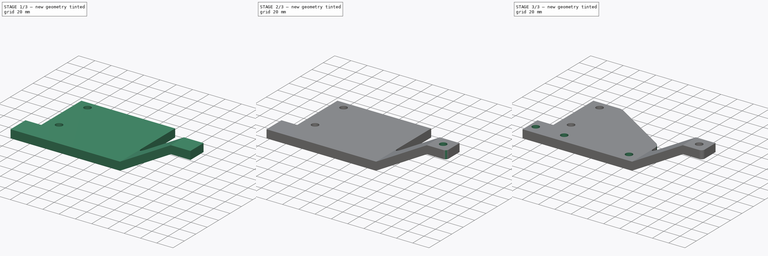
[diagram: build sequence overview — one tinted view per stage of 3, left to right]
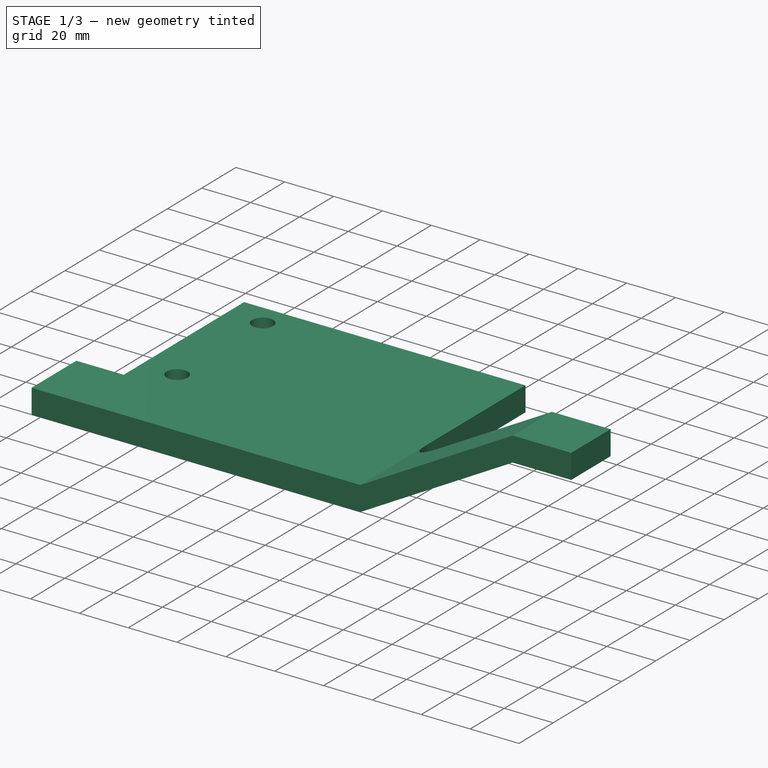
[diagram: stage 1 of 3 — iso view after this stage's code; geometry added in this stage tinted green]
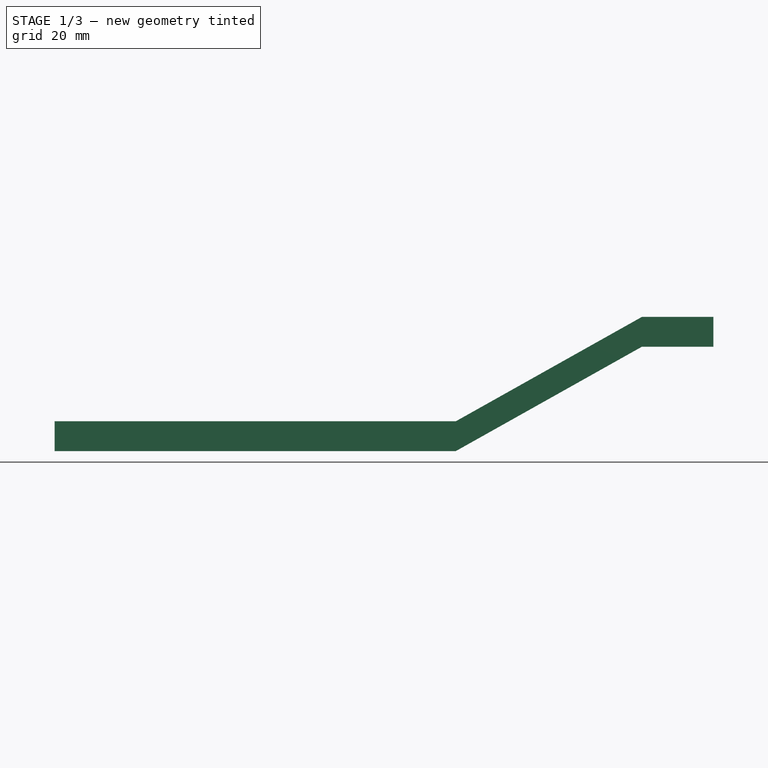
[diagram: stage 1 of 3 — front view after this stage's code; geometry added in this stage tinted green]
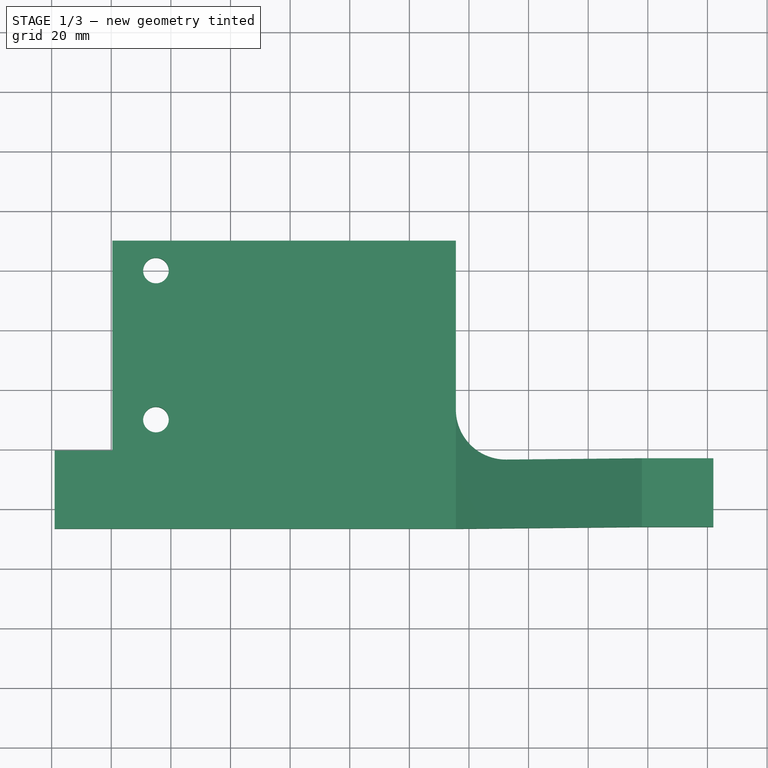
[diagram: stage 1 of 3 — top view after this stage's code; geometry added in this stage tinted green]
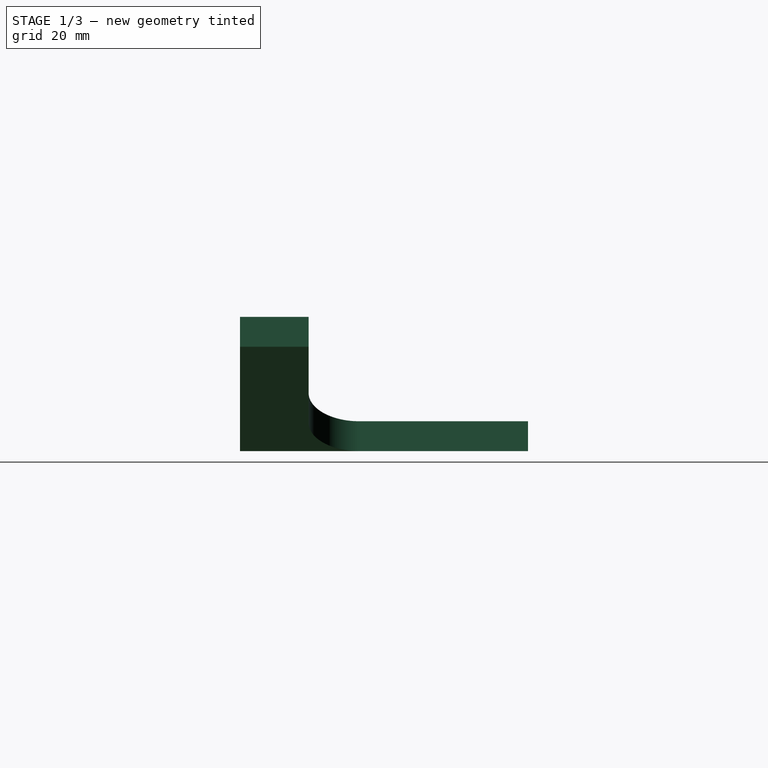
[diagram: stage 1 of 3 — right view after this stage's code; geometry added in this stage tinted green]
FCSTD DOCUMENT  (FreeCAD 1.0R39109 (Git))
Label: sway_motor_mount_front_plate
License: All rights reserved
LicenseURL: https://en.wikipedia.org/wiki/All_rights_reserved
objects: Sketcher::SketchObject×4, PartDesign::Fillet×3, PartDesign::Pad×2, PartDesign::Pocket×2, PartDesign::Chamfer×1, PartDesign::Body×1
note: 33 computed .brp shape members not serialized (recipe doc carries the construction recipe); baked Part::Feature solids carry a one-line shape summary decoded from their .brp

FEATURE [Sketcher::SketchObject] Sketch
  ArcFitTolerance = 1e-06
  AttachmentSupport = -> [XY_Plane]
  FullyConstrained = false
  MakeInternals = false
  MapMode = 5
  sketch-geometry (17):
    g0: LineSegment [constr] StartX=0 StartY=0 StartZ=0 EndX=178 EndY=0 EndZ=0
    g1: LineSegment [constr] StartX=178 StartY=0 StartZ=0 EndX=178 EndY=70 EndZ=0
    g2: LineSegment [constr] StartX=178 StartY=70 StartZ=0 EndX=0 EndY=70 EndZ=0
    g3: LineSegment [constr] StartX=0 StartY=70 StartZ=0 EndX=0 EndY=0 EndZ=0
    g4: Circle CenterX=15 CenterY=60 CenterZ=0 NormalX=0 NormalY=0 NormalZ=1 AngleXU=0 Radius=4.3
    g5: Circle CenterX=15 CenterY=10 CenterZ=0 NormalX=0 NormalY=0 NormalZ=1 AngleXU=0 Radius=4.3
    g6: LineSegment StartX=0.4 StartY=70 StartZ=0 EndX=0.4 EndY=-0.4 EndZ=0
    g7: LineSegment [constr] StartX=-19 StartY=-27 StartZ=0 EndX=-19 EndY=-107 EndZ=0
    g8: LineSegment [constr] StartX=-19 StartY=-107 StartZ=0 EndX=95.6 EndY=-107 EndZ=0
    g9: LineSegment [constr] StartX=95.6 StartY=-107 StartZ=0 EndX=95.6 EndY=-27 EndZ=0
    g10: LineSegment [constr] StartX=95.6 StartY=-27 StartZ=0 EndX=-19 EndY=-27 EndZ=0
    g11: LineSegment StartX=0.4 StartY=-0.4 StartZ=0 EndX=-19 EndY=-0.4 EndZ=0
    g12: LineSegment StartX=-19 StartY=-0.4 StartZ=0 EndX=-19 EndY=-26.6 EndZ=0
    g13: LineSegment StartX=-19 StartY=-26.6 StartZ=0 EndX=115.6 EndY=-26.6 EndZ=0
    g14: LineSegment StartX=115.6 StartY=-26.6 StartZ=0 EndX=115.6 EndY=0 EndZ=0
    g15: LineSegment StartX=115.6 StartY=0 StartZ=0 EndX=115.6 EndY=70 EndZ=0
    g16: LineSegment StartX=115.6 StartY=70 StartZ=0 EndX=0.4 EndY=70 EndZ=0
  constraints (49):
    c: Coincident(g0,g1)
    c: Coincident(g1,g2)
    c: Coincident(g2,g3)
    c: Coincident(g3,g0)
    c: Horizontal(g0)
    c: Horizontal(g2)
    c: Vertical(g1)
    c: Vertical(g3)
    c: Distance(g0,g2) = 70
    c: Coincident(g0,g-1)
    c: DistanceX(g5) = 15
    c: DistanceX(g5,g4) = 0
    c: DistanceY(g5,g4) = 50
    c: Equal(g5,g4)
    c: Diameter(g5) = 8.6
    c: DistanceY(g0,g5) = 10
    c: Vertical(g6)
    c: DistanceX(g6) = 0.4
    c: Coincident(g7,g8)
    c: Coincident(g8,g9)
    c: Coincident(g9,g10)
    c: Coincident(g10,g7)
    c: Vertical(g7)
    c: Vertical(g9)
    c: Horizontal(g8)
    c: Horizontal(g10)
    c: DistanceX(g8,g8) = 114.6
    c: DistanceY(g7,g7) = 80
    c: DistanceX(g7) = -19
    c: DistanceY(g7) = -27
    c: PointOnObject(g6,g2)
    c: DistanceY(g6,g0) = 0.4
    c: Coincident(g6,g11)
    c: Horizontal(g11)
    c: Coincident(g11,g12)
    c: Vertical(g12)
    c: Coincident(g12,g13)
    c: Horizontal(g13)
    c: Coincident(g13,g14)
    c: PointOnObject(g14,g0)
    c: Coincident(g14,g15)
    c: PointOnObject(g15,g2)
    c: Vertical(g15)
    c: Coincident(g15,g16)
    c: Coincident(g16,g6)
    c: DistanceY(g7,g12) = 0.4
    c: DistanceX(g12,g7) = 0
    c: DistanceX(g9,g13) = 20
    c: Vertical(g14)
FEATURE [PartDesign::Pad] Pad
  Direction = (0,0,1)
  Length = 10
  Length2 = 10
  Profile = -> Sketch
  ReferenceAxis = -> Sketch [N_Axis]
  Refine = true
  Suppressed = false
  Type = 0
FEATURE [Sketcher::SketchObject] Sketch001
  ArcFitTolerance = 1e-06
  AttachmentSupport = -> [Pad]
  FullyConstrained = true
  MakeInternals = false
  MapMode = 5
  Placement = pos=(0,-26.6,0) rot=(1,0,0;1.5708rad)
  sketch-geometry (14):
    g0: LineSegment StartX=115.6 StartY=0 StartZ=0 EndX=178 EndY=35 EndZ=0
    g1: LineSegment StartX=178 StartY=35 StartZ=0 EndX=202 EndY=35 EndZ=0
    g2: LineSegment StartX=202 StartY=35 StartZ=0 EndX=202 EndY=45 EndZ=0
    g3: LineSegment StartX=202 StartY=45 StartZ=0 EndX=178 EndY=45 EndZ=0
    g4: LineSegment StartX=178 StartY=45 StartZ=0 EndX=115.6 EndY=10 EndZ=0
    g5: LineSegment StartX=115.6 StartY=10 StartZ=0 EndX=115.6 EndY=0 EndZ=0
    g6: LineSegment [constr] StartX=115.6 StartY=0 StartZ=0 EndX=123.25 EndY=0 EndZ=0
    g7: LineSegment [constr] StartX=123.25 StartY=0 StartZ=0 EndX=123.25 EndY=-1.1 EndZ=0
    g8: LineSegment [constr] StartX=118.25 StartY=-1.1 StartZ=0 EndX=118.25 EndY=-11.1 EndZ=0
    g9: LineSegment [constr] StartX=118.25 StartY=-11.1 StartZ=0 EndX=128.25 EndY=-11.1 EndZ=0
    g10: LineSegment [constr] StartX=128.25 StartY=-11.1 StartZ=0 EndX=128.25 EndY=-1.1 EndZ=0
    g11: LineSegment [constr] StartX=128.25 StartY=-1.1 StartZ=0 EndX=118.25 EndY=-1.1 EndZ=0
    g12: LineSegment [constr] StartX=118.25 StartY=-6.1 StartZ=0 EndX=128.25 EndY=-6.1 EndZ=0
    g13: LineSegment [constr] StartX=123.25 StartY=-6.1 StartZ=0 EndX=123.25 EndY=2.9 EndZ=0
  constraints (43):
    c: PointOnObject(g0,g-1)
    c: Coincident(g0,g1)
    c: Horizontal(g1)
    c: Coincident(g1,g2)
    c: Vertical(g2)
    c: Coincident(g2,g3)
    c: Horizontal(g3)
    c: Coincident(g3,g4)
    c: Coincident(g4,g5)
    c: Coincident(g5,g0)
    c: Vertical(g5)
    c: DistanceY(g2,g2) = 10
    c: DistanceX(g0) = 115.6
    c: DistanceX(g0,g1) = 86.4
    c: DistanceX(g1,g1) = 24
    c: Equal(g1,g3)
    c: Coincident(g6,g0)
    c: Horizontal(g6)
    c: DistanceX(g6,g6) = 7.65
    c: Coincident(g7,g6)
    c: Vertical(g7)
    c: DistanceY(g7) = -1.1
    c: Coincident(g8,g9)
    c: Coincident(g9,g10)
    c: Coincident(g10,g11)
    c: Coincident(g11,g8)
    c: Vertical(g8)
    c: Vertical(g10)
    c: Horizontal(g9)
    c: Horizontal(g11)
    c: PointOnObject(g7,g11)
    c: DistanceY(g10,g10) = 10
    c: Equal(g8,g11)
    c: DistanceX(g8,g7) = 5
    c: PointOnObject(g12,g8)
    c: PointOnObject(g12,g10)
    c: Horizontal(g12)
    c: DistanceY(g12,g8) = 5
    c: Symmetric(g12,g12,g13)
    c: Vertical(g13)
    c: DistanceY(g13,g13) = 9
    c: DistanceY(g4,g1) = 25
    c: DistanceY(g5,g5) = 10
FEATURE [PartDesign::Pad] Pad001
  BaseFeature = -> Pad
  Direction = (0,-1,2e-16)
  Length = 23
  Length2 = 10
  Profile = -> Sketch001
  ReferenceAxis = -> Sketch001 [N_Axis]
  Refine = true
  Reversed = true
  Suppressed = false
  Type = 0
FEATURE [PartDesign::Fillet] Fillet
  Base = -> Pad001 [Edge23]
  BaseFeature = -> Pad001
  Radius = 17
  Refine = true
  SupportTransform = false
  Suppressed = false
  UseAllEdges = false
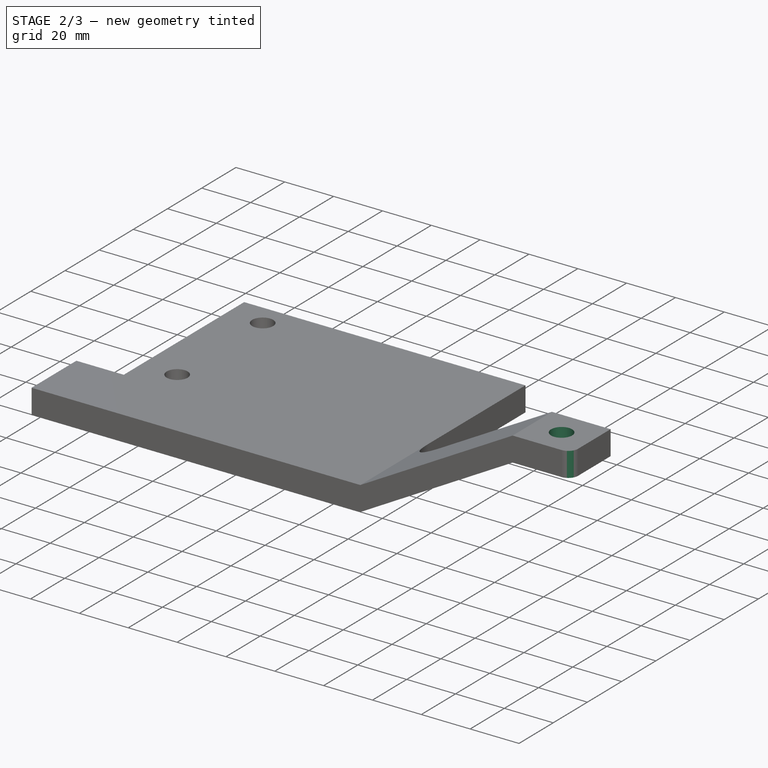
[diagram: stage 2 of 3 — iso view after this stage's code; geometry added in this stage tinted green]
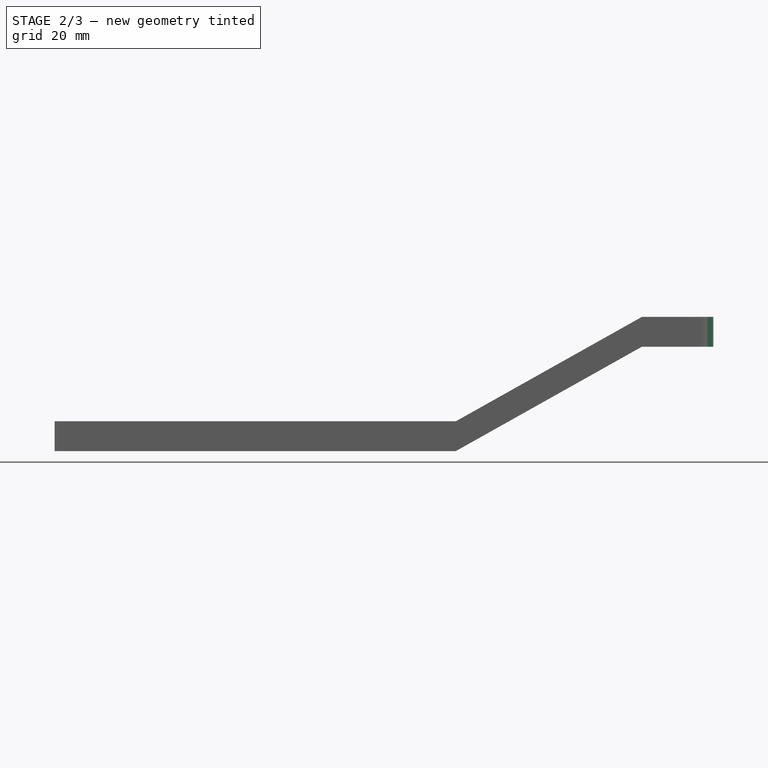
[diagram: stage 2 of 3 — front view after this stage's code; geometry added in this stage tinted green]
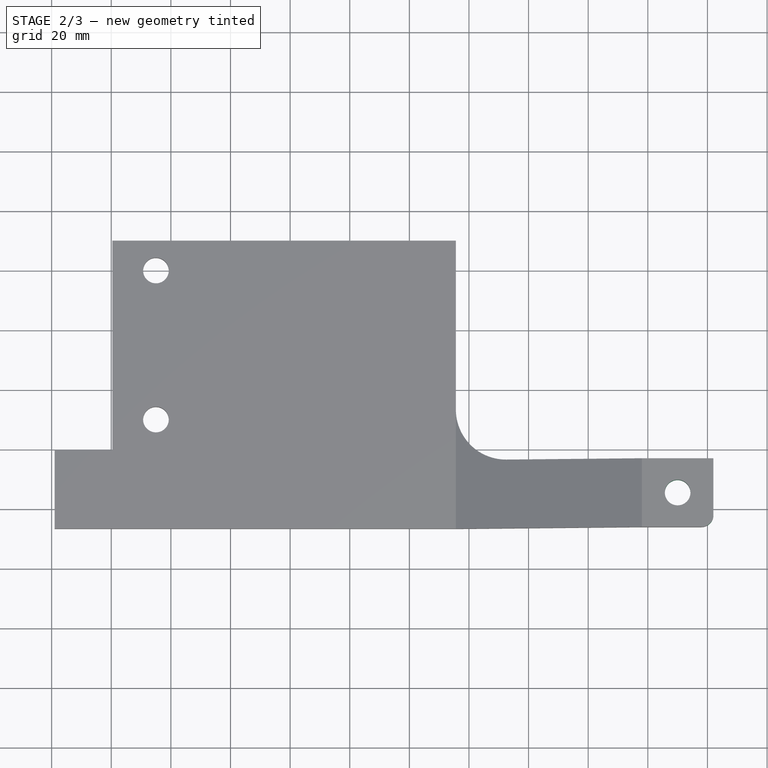
[diagram: stage 2 of 3 — top view after this stage's code; geometry added in this stage tinted green]
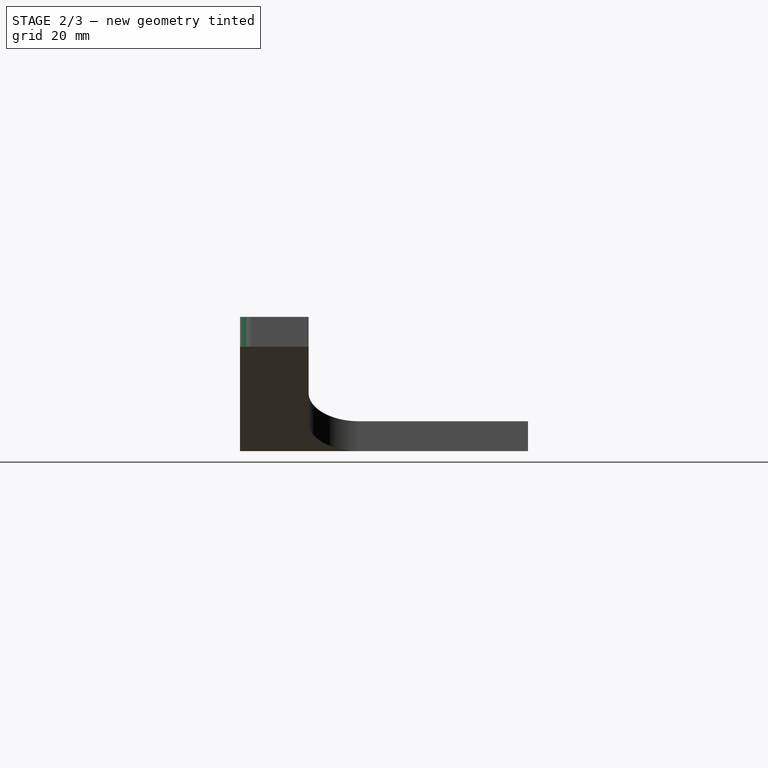
[diagram: stage 2 of 3 — right view after this stage's code; geometry added in this stage tinted green]
FEATURE [Sketcher::SketchObject] Sketch002
  ArcFitTolerance = 1e-06
  AttachmentSupport = -> [Fillet]
  FullyConstrained = true
  MakeInternals = false
  MapMode = 5
  Placement = pos=(0,9.9e-15,45) rot=(0,0,1;0rad)
  sketch-geometry (7):
    g0: LineSegment [constr] StartX=202 StartY=-26.6 StartZ=0 EndX=202 EndY=-3.6 EndZ=0
    g1: LineSegment [constr] StartX=202 StartY=-3.6 StartZ=0 EndX=178 EndY=-3.6 EndZ=0
    g2: LineSegment [constr] StartX=178 StartY=-3.6 StartZ=0 EndX=178 EndY=-26.6 EndZ=0
    g3: LineSegment [constr] StartX=178 StartY=-26.6 StartZ=0 EndX=202 EndY=-26.6 EndZ=0
    g4: LineSegment [constr] StartX=178 StartY=-26.6 StartZ=0 EndX=202 EndY=-3.6 EndZ=0
    g5: LineSegment [constr] StartX=178 StartY=-3.6 StartZ=0 EndX=202 EndY=-26.6 EndZ=0
    g6: Circle CenterX=190 CenterY=-15.1 CenterZ=0 NormalX=0 NormalY=0 NormalZ=1 AngleXU=0 Radius=4.3
  constraints (18):
    c: Coincident(g0,g1)
    c: Coincident(g1,g2)
    c: Coincident(g2,g3)
    c: Coincident(g3,g0)
    c: Vertical(g0)
    c: Vertical(g2)
    c: Horizontal(g1)
    c: Horizontal(g3)
    c: Distance(g0,g2) = 24
    c: Distance(g1,g3) = 23
    c: DistanceY(g0) = -3.6
    c: DistanceX(g0) = 202
    c: Coincident(g4,g2)
    c: Coincident(g4,g0)
    c: Coincident(g5,g1)
    c: Coincident(g5,g0)
    c: Diameter(g6) = 8.6
    c: Symmetric(g4,g4,g6)
FEATURE [PartDesign::Pocket] Pocket
  BaseFeature = -> Fillet
  Direction = (0,0,-1)
  Length = 5
  Length2 = 5
  Profile = -> Sketch002
  ReferenceAxis = -> Sketch002 [N_Axis]
  Refine = true
  Suppressed = false
  Type = 1
FEATURE [PartDesign::Fillet] Fillet001
  Base = -> Pocket [Edge24]
  BaseFeature = -> Pocket
  Radius = 4
  Refine = true
  SupportTransform = false
  Suppressed = false
  UseAllEdges = false
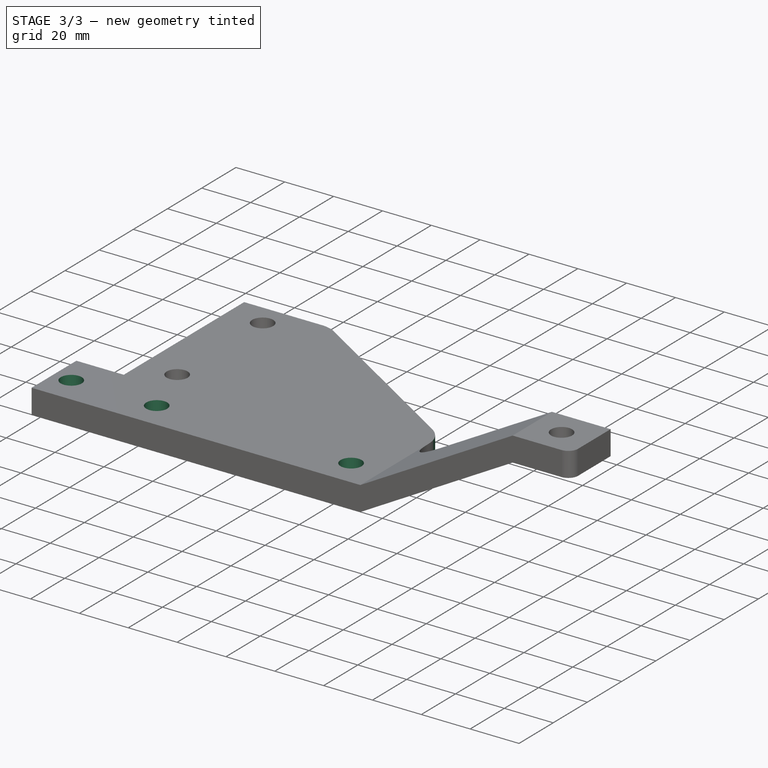
[diagram: stage 3 of 3 — iso view after this stage's code; geometry added in this stage tinted green]
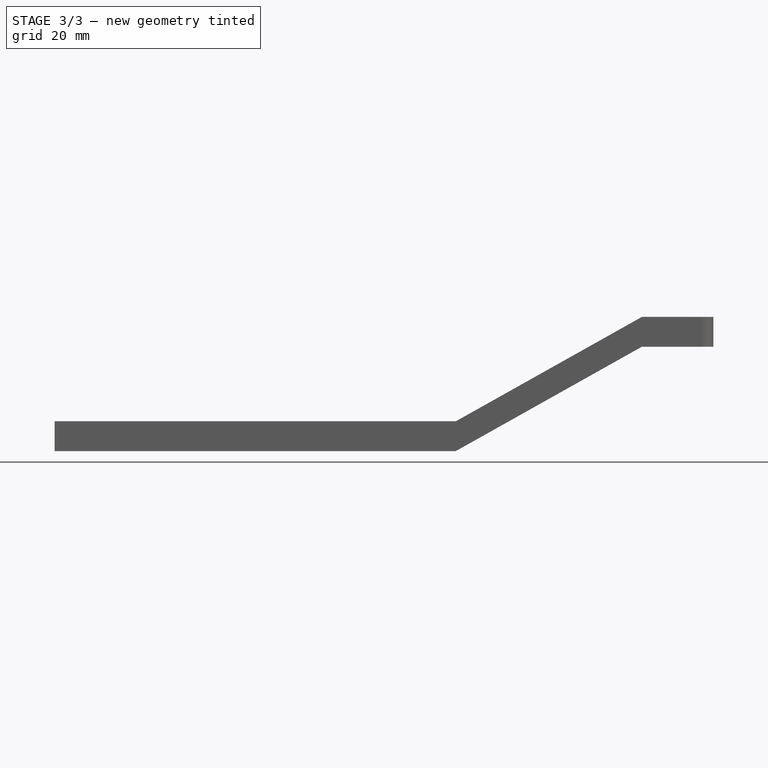
[diagram: stage 3 of 3 — front view after this stage's code; geometry added in this stage tinted green]
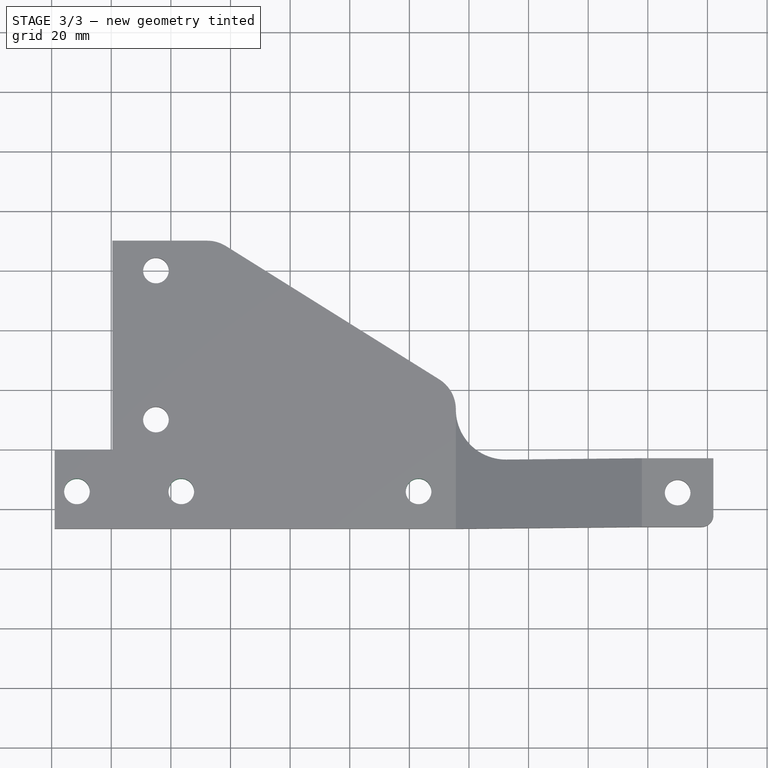
[diagram: stage 3 of 3 — top view after this stage's code; geometry added in this stage tinted green]
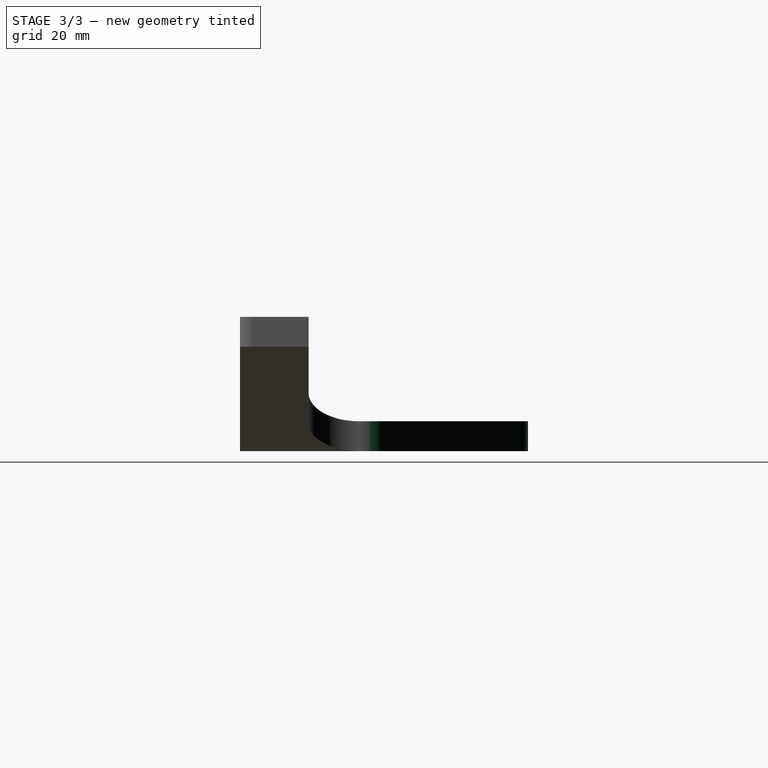
[diagram: stage 3 of 3 — right view after this stage's code; geometry added in this stage tinted green]
FEATURE [Sketcher::SketchObject] Sketch003
  ArcFitTolerance = 1e-06
  AttachmentSupport = -> [Fillet001]
  FullyConstrained = true
  MakeInternals = false
  MapMode = 5
  Placement = pos=(0,0,10) rot=(0,0,1;0rad)
  sketch-geometry (19):
    g0: LineSegment [constr] StartX=-19 StartY=-26.6 StartZ=0 EndX=-19 EndY=-106.6 EndZ=0
    g1: LineSegment [constr] StartX=-19 StartY=-106.6 StartZ=0 EndX=95.6 EndY=-106.6 EndZ=0
    g2: LineSegment [constr] StartX=95.6 StartY=-106.6 StartZ=0 EndX=95.6 EndY=-26.6 EndZ=0
    g3: LineSegment [constr] StartX=95.6 StartY=-26.6 StartZ=0 EndX=-19 EndY=-26.6 EndZ=0
    g4: LineSegment [constr] StartX=-19 StartY=-26.6 StartZ=0 EndX=-19 EndY=-1.6 EndZ=0
    g5: LineSegment [constr] StartX=-19 StartY=-1.6 StartZ=0 EndX=95.6 EndY=-1.6 EndZ=0
    g6: LineSegment [constr] StartX=95.6 StartY=-1.6 StartZ=0 EndX=95.6 EndY=-26.6 EndZ=0
    g7: LineSegment [constr] StartX=-4 StartY=-1.6 StartZ=0 EndX=-4 EndY=-26.6 EndZ=0
    g8: LineSegment [constr] StartX=-19 StartY=-1.6 StartZ=0 EndX=-4 EndY=-26.6 EndZ=0
    g9: LineSegment [constr] StartX=95.6 StartY=-1.6 StartZ=0 EndX=110.6 EndY=-1.6 EndZ=0
    g10: LineSegment [constr] StartX=110.6 StartY=-1.6 StartZ=0 EndX=110.6 EndY=-26.6 EndZ=0
    g11: LineSegment [constr] StartX=110.6 StartY=-26.6 StartZ=0 EndX=95.6 EndY=-26.6 EndZ=0
    g12: LineSegment [constr] StartX=11 StartY=-1.6 StartZ=0 EndX=11 EndY=-26.6 EndZ=0
    g13: LineSegment [constr] StartX=36 StartY=-1.6 StartZ=0 EndX=36 EndY=-26.6 EndZ=0
    g14: LineSegment [constr] StartX=11 StartY=-1.6 StartZ=0 EndX=36 EndY=-26.6 EndZ=0
    g15: LineSegment [constr] StartX=95.6 StartY=-1.6 StartZ=0 EndX=110.6 EndY=-26.6 EndZ=0
    g16: Circle CenterX=-11.5 CenterY=-14.1 CenterZ=0 NormalX=0 NormalY=0 NormalZ=1 AngleXU=0 Radius=4.3
    g17: Circle CenterX=23.5 CenterY=-14.1 CenterZ=0 NormalX=0 NormalY=0 NormalZ=1 AngleXU=0 Radius=4.3
    g18: Circle CenterX=103.1 CenterY=-14.1 CenterZ=0 NormalX=0 NormalY=0 NormalZ=1 AngleXU=0 Radius=4.3
  constraints (52):
    c: Coincident(g0,g1)
    c: Coincident(g1,g2)
    c: Coincident(g2,g3)
    c: Coincident(g3,g0)
    c: Vertical(g0)
    c: Vertical(g2)
    c: Horizontal(g1)
    c: Horizontal(g3)
    c: DistanceY(g0) = -26.6
    c: DistanceX(g0,g-1) = 19
    c: DistanceX(g3,g3) = 114.6
    c: DistanceY(g0,g0) = 80
    c: Coincident(g0,g4)
    c: Vertical(g4)
    c: Coincident(g4,g5)
    c: Horizontal(g5)
    c: Coincident(g5,g6)
    c: Coincident(g6,g2)
    c: Vertical(g6)
    c: DistanceY(g4,g4) = 25
    c: PointOnObject(g7,g5)
    c: PointOnObject(g7,g3)
    c: Vertical(g7)
    c: DistanceX(g4,g7) = 15
    c: Coincident(g8,g4)
    c: Coincident(g8,g7)
    c: Coincident(g5,g9)
    c: Horizontal(g9)
    c: Coincident(g9,g10)
    c: Vertical(g10)
    c: Coincident(g10,g11)
    c: Coincident(g11,g2)
    c: Horizontal(g11)
    c: DistanceX(g9,g9) = 15
    c: PointOnObject(g12,g5)
    c: PointOnObject(g12,g3)
    c: Vertical(g12)
    c: PointOnObject(g13,g5)
    c: PointOnObject(g13,g3)
    c: Vertical(g13)
    c: DistanceX(g12,g13) = 25
    c: DistanceX(g4,g12) = 30
    c: Coincident(g14,g12)
    c: Coincident(g14,g13)
    c: Coincident(g15,g5)
    c: Coincident(g15,g10)
    c: Diameter(g16) = 8.6
    c: Symmetric(g8,g8,g16)
    c: Symmetric(g14,g14,g17)
    c: Symmetric(g15,g15,g18)
    c: Equal(g16,g17)
    c: Equal(g17,g18)
FEATURE [PartDesign::Pocket] Pocket001
  BaseFeature = -> Fillet001
  Direction = (0,0,-1)
  Length = 5
  Length2 = 5
  Profile = -> Sketch003
  ReferenceAxis = -> Sketch003 [N_Axis]
  Refine = true
  Suppressed = false
  Type = 1
FEATURE [PartDesign::Chamfer] Chamfer
  Angle = 45
  Base = -> Pocket001 [Edge53]
  BaseFeature = -> Pocket001
  ChamferType = 1
  FlipDirection = false
  Refine = true
  Size = 50
  Size2 = 80
  SupportTransform = false
  Suppressed = false
  UseAllEdges = false
FEATURE [PartDesign::Fillet] Fillet002
  Base = -> Chamfer [Edge16,Edge18]
  BaseFeature = -> Chamfer
  Radius = 11.9
  Refine = true
  SupportTransform = false
  Suppressed = false
  UseAllEdges = false
FEATURE [PartDesign::Body] Body  label="sway_motor_mount_front_plate"
  AllowCompound = false
  Group = -> [Sketch,Pad,Sketch001,Pad001,Fillet,Sketch002,Pocket,Fillet001,Sketch003,Pocket001,Chamfer,Fillet002]
  Origin = -> Origin
  Tip = -> Fillet002
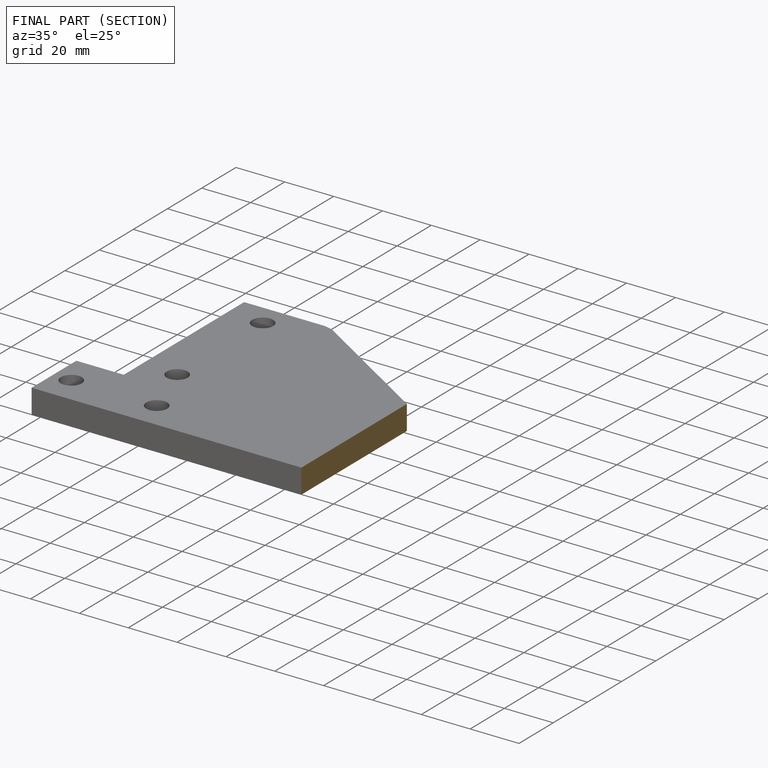
[diagram: finished part — half-section view (interior)]
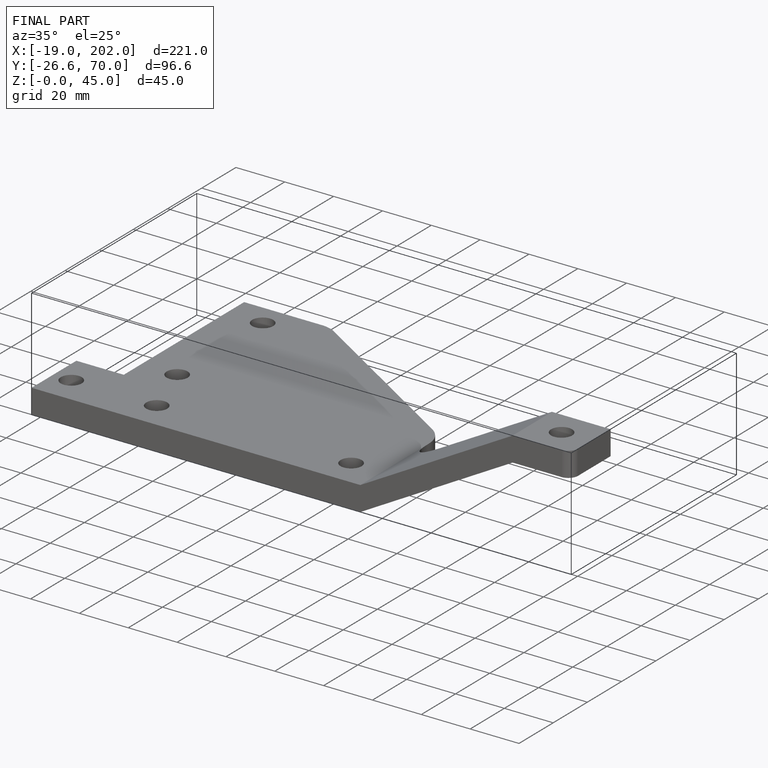
[diagram: finished part — iso view with bounding-box wireframe]
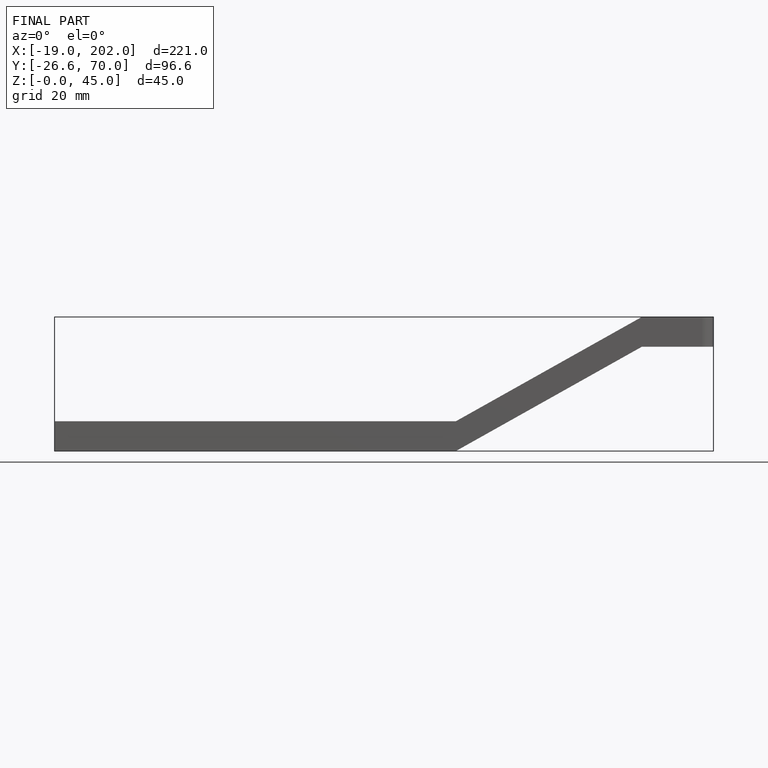
[diagram: finished part — front view with bounding-box wireframe]
